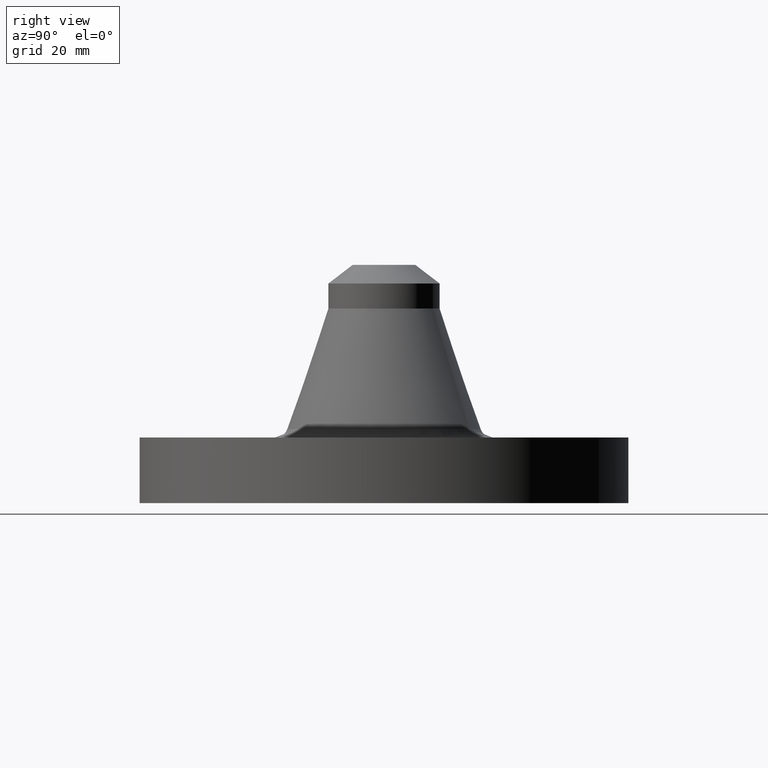
[diagram: clean part render]
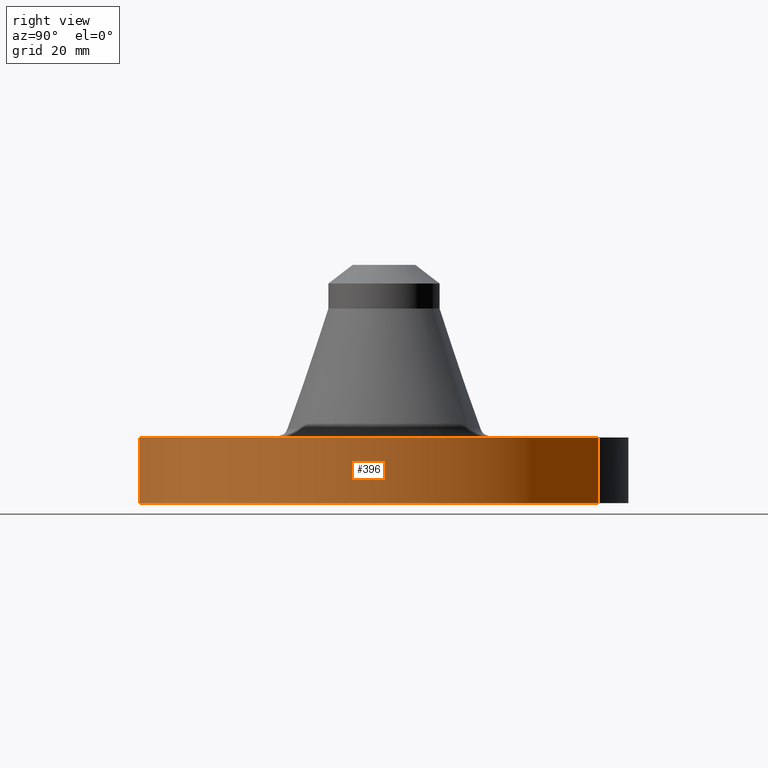
[diagram: same view with one face highlighted and labeled with its STEP entity id]
A machine part, right view. The second image highlights one B-rep face of the part: STEP entity #396.
In plain terms, the highlighted cylindrical surface (partial cylindrical patch) has radius 58.674 mm, axis along (0, 0, -1).
Its self-contained STEP definition (entity closure, byte-faithful):
#140=AXIS2_PLACEMENT_3D('Circle Axis2P3D',#138,#139,$) ;
#238=AXIS2_PLACEMENT_3D('Circle Axis2P3D',#236,#237,$) ;
#388=AXIS2_PLACEMENT_3D('Cylinder Axis2P3D',#385,#386,#387) ;
#133=CARTESIAN_POINT('Vertex',(-1.10747299418,-2.02721571797,2.93326867607E-011)) ;
#135=CARTESIAN_POINT('Vertex',(1.10747299418,2.02721571798,2.93326867607E-011)) ;
#138=CARTESIAN_POINT('Axis2P3D Location',(-3.08543392061E-011,3.72685259731E-013,0.)) ;
#236=CARTESIAN_POINT('Axis2P3D Location',(-3.08543392061E-011,3.97540268421E-012,0.620000000002)) ;
#240=CARTESIAN_POINT('Vertex',(1.10747299418,2.02721571798,0.620000000016)) ;
#242=CARTESIAN_POINT('Vertex',(-1.10747299418,-2.02721571798,0.620000000016)) ;
#361=CARTESIAN_POINT('Line Origine',(-1.10747299418,-2.02721571798,0.310000000023)) ;
#366=CARTESIAN_POINT('Line Origine',(1.10747299418,2.02721571798,0.310000000023)) ;
#385=CARTESIAN_POINT('Axis2P3D Location',(0.,0.,1.125)) ;
#139=DIRECTION('Axis2P3D Direction',(0.,0.,-0.0393700787402)) ;
#237=DIRECTION('Axis2P3D Direction',(0.,0.,-0.0393700787402)) ;
#362=DIRECTION('Vector Direction',(0.,0.,-0.0393700787402)) ;
#367=DIRECTION('Vector Direction',(0.,0.,-0.0393700787402)) ;
#386=DIRECTION('Axis2P3D Direction',(0.,0.,-0.0393700787402)) ;
#387=DIRECTION('Axis2P3D XDirection',(0.0188750212049,0.0345504945626,0.)) ;
#363=VECTOR('Line Direction',#362,0.0393700787402) ;
#368=VECTOR('Line Direction',#367,0.0393700787402) ;
#391=ORIENTED_EDGE('',*,*,#142,.F.) ;
#392=ORIENTED_EDGE('',*,*,#370,.T.) ;
#393=ORIENTED_EDGE('',*,*,#244,.T.) ;
#394=ORIENTED_EDGE('',*,*,#365,.F.) ;
#396=ADVANCED_FACE('PartBody',(#395),#389,.T.) ;
#141=CIRCLE('generated circle',#140,2.31000000004) ;
#239=CIRCLE('generated circle',#238,2.31000000004) ;
#389=CYLINDRICAL_SURFACE('generated cylinder',#388,2.31000000001) ;
#142=EDGE_CURVE('',#136,#134,#141,.T.) ;
#244=EDGE_CURVE('',#241,#243,#239,.T.) ;
#365=EDGE_CURVE('',#134,#243,#364,.F.) ;
#370=EDGE_CURVE('',#136,#241,#369,.F.) ;
#390=EDGE_LOOP('',(#391,#392,#393,#394)) ;
#395=FACE_OUTER_BOUND('',#390,.T.) ;
#364=LINE('Line',#361,#363) ;
#369=LINE('Line',#366,#368) ;
#134=VERTEX_POINT('',#133) ;
#136=VERTEX_POINT('',#135) ;
#241=VERTEX_POINT('',#240) ;
#243=VERTEX_POINT('',#242) ;